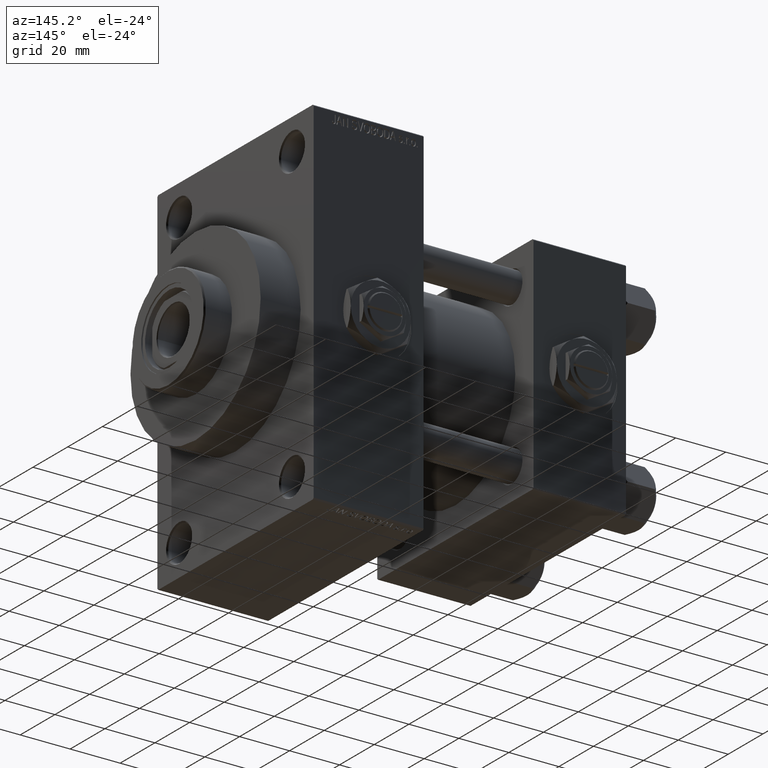
[diagram: clean part render]
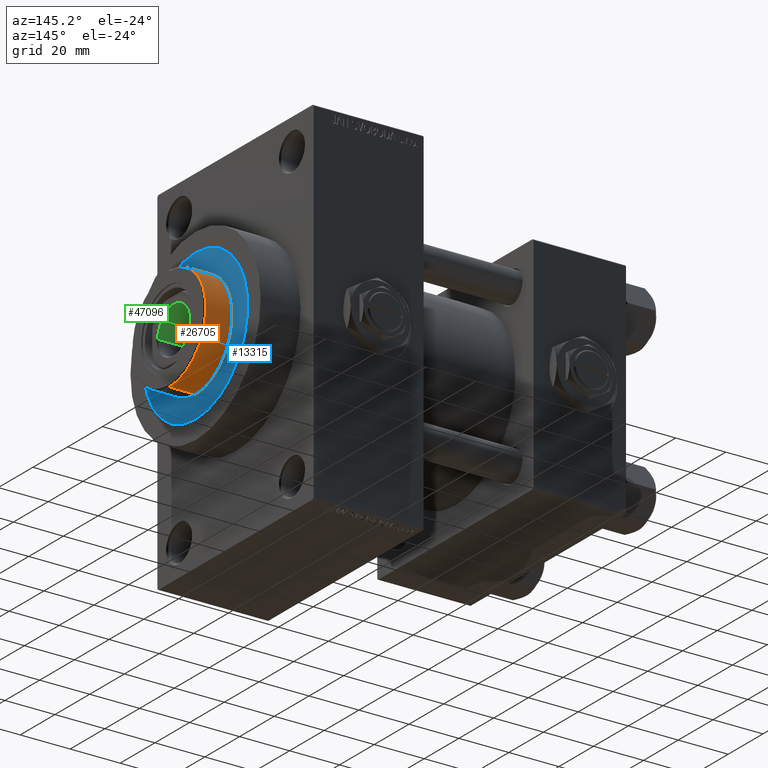
[diagram: same view with three faces highlighted in distinct colors, each labeled with its STEP entity id]
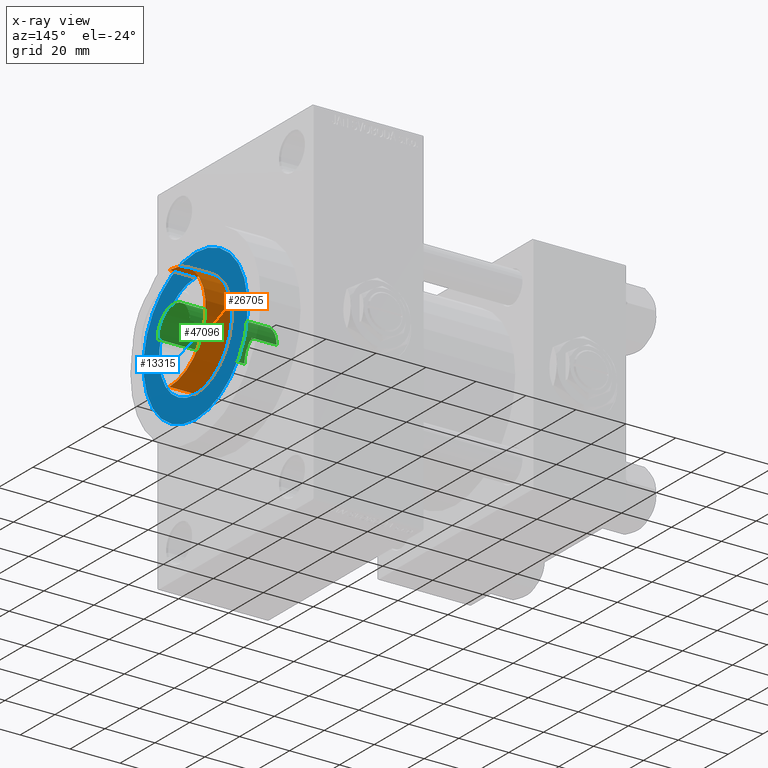
[diagram: x-ray of the same camera — body ghosted, the three highlighted faces saturated]
A machine part, auxiliary view with three faces highlighted in distinct colors.
The next image is the same camera in x-ray (body ghosted, the three faces saturated) — at least one of them is partly hidden behind the body in this view.
Their STEP definitions:

[orange] entity #26705 — the highlighted cylindrical surface (partial cylindrical patch) has radius 21 mm, axis along (-1, 0, 0).
#613 = CARTESIAN_POINT ( 'NONE',  ( 0.000000000000000000, 0.000000000000000000, 53.76000000000001933 ) ) ;
#2770 = VERTEX_POINT ( 'NONE', #13789 ) ;
#2890 = VERTEX_POINT ( 'NONE', #3085 ) ;
#3081 = LINE ( 'NONE', #44948, #25837 ) ;
#3085 = CARTESIAN_POINT ( 'NONE',  ( -21.00000000000000000, 0.000000000000000000, 53.76000000000001933 ) ) ;
#3525 = CIRCLE ( 'NONE', #37760, 21.00000000000000000 ) ;
#5161 = CARTESIAN_POINT ( 'NONE',  ( 21.00000000000000000, 2.571758278209441661E-15, 43.25999999999999801 ) ) ;
#5489 = DIRECTION ( 'NONE',  ( -0.000000000000000000, -0.000000000000000000, -1.000000000000000000 ) ) ;
#6831 = CYLINDRICAL_SURFACE ( 'NONE', #16289, 21.00000000000000000 ) ;
#7584 = DIRECTION ( 'NONE',  ( 0.000000000000000000, 0.000000000000000000, -1.000000000000000000 ) ) ;
#9514 = CARTESIAN_POINT ( 'NONE',  ( -21.00000000000000000, 0.000000000000000000, 43.25999999999999801 ) ) ;
#10528 = ORIENTED_EDGE ( 'NONE', *, *, #16789, .T. ) ;
#10774 = DIRECTION ( 'NONE',  ( -0.000000000000000000, -0.000000000000000000, -1.000000000000000000 ) ) ;
#13789 = CARTESIAN_POINT ( 'NONE',  ( 21.00000000000000000, 2.571758278209441661E-15, 53.76000000000001933 ) ) ;
#14926 = DIRECTION ( 'NONE',  ( 1.000000000000000000, 0.000000000000000000, 0.000000000000000000 ) ) ;
#15795 = DIRECTION ( 'NONE',  ( 1.000000000000000000, 0.000000000000000000, 0.000000000000000000 ) ) ;
#16208 = EDGE_LOOP ( 'NONE', ( #46534, #10528, #35695, #25973 ) ) ;
#16289 = AXIS2_PLACEMENT_3D ( 'NONE', #17314, #28777, #40006 ) ;
#16789 = EDGE_CURVE ( 'NONE', #2770, #2890, #48785, .T. ) ;
#17314 = CARTESIAN_POINT ( 'NONE',  ( 0.000000000000000000, 0.000000000000000000, 54.26000000000000512 ) ) ;
#17831 = VECTOR ( 'NONE', #5489, 1000.000000000000000 ) ;
#25837 = VECTOR ( 'NONE', #10774, 1000.000000000000000 ) ;
#25973 = ORIENTED_EDGE ( 'NONE', *, *, #36684, .T. ) ;
#26705 = ADVANCED_FACE ( 'NONE', ( #47986 ), #6831, .T. ) ;
#28128 = VERTEX_POINT ( 'NONE', #5161 ) ;
#28777 = DIRECTION ( 'NONE',  ( -0.000000000000000000, -0.000000000000000000, -1.000000000000000000 ) ) ;
#35695 = ORIENTED_EDGE ( 'NONE', *, *, #37956, .T. ) ;
#36393 = EDGE_CURVE ( 'NONE', #2770, #28128, #43387, .T. ) ;
#36684 = EDGE_CURVE ( 'NONE', #40590, #28128, #3525, .T. ) ;
#37760 = AXIS2_PLACEMENT_3D ( 'NONE', #46090, #49078, #14926 ) ;
#37956 = EDGE_CURVE ( 'NONE', #2890, #40590, #3081, .T. ) ;
#40006 = DIRECTION ( 'NONE',  ( -1.000000000000000000, 0.000000000000000000, 0.000000000000000000 ) ) ;
#40035 = AXIS2_PLACEMENT_3D ( 'NONE', #613, #7584, #15795 ) ;
#40590 = VERTEX_POINT ( 'NONE', #9514 ) ;
#43137 = CARTESIAN_POINT ( 'NONE',  ( 21.00000000000000000, 2.571758278209441661E-15, 54.26000000000000512 ) ) ;
#43387 = LINE ( 'NONE', #43137, #17831 ) ;
#44948 = CARTESIAN_POINT ( 'NONE',  ( -21.00000000000000000, 0.000000000000000000, 54.26000000000000512 ) ) ;
#46090 = CARTESIAN_POINT ( 'NONE',  ( 0.000000000000000000, 0.000000000000000000, 43.25999999999999801 ) ) ;
#46534 = ORIENTED_EDGE ( 'NONE', *, *, #36393, .F. ) ;
#47986 = FACE_OUTER_BOUND ( 'NONE', #16208, .T. ) ;
#48785 = CIRCLE ( 'NONE', #40035, 21.00000000000000000 ) ;
#49078 = DIRECTION ( 'NONE',  ( 0.000000000000000000, 0.000000000000000000, 1.000000000000000000 ) ) ;

[blue] entity #13315 — the highlighted planar face has unit normal (1, -0, -0).
#1607 = CIRCLE ( 'NONE', #14296, 30.00000000000000000 ) ;
#2338 = DIRECTION ( 'NONE',  ( 1.000000000000000000, 0.000000000000000000, -0.000000000000000000 ) ) ;
#3525 = CIRCLE ( 'NONE', #37760, 21.00000000000000000 ) ;
#4691 = DIRECTION ( 'NONE',  ( 0.000000000000000000, 0.000000000000000000, 1.000000000000000000 ) ) ;
#5161 = CARTESIAN_POINT ( 'NONE',  ( 21.00000000000000000, 2.571758278209441661E-15, 43.25999999999999801 ) ) ;
#6230 = DIRECTION ( 'NONE',  ( 0.000000000000000000, 0.000000000000000000, 1.000000000000000000 ) ) ;
#7272 = DIRECTION ( 'NONE',  ( 0.000000000000000000, 0.000000000000000000, 1.000000000000000000 ) ) ;
#7754 = VERTEX_POINT ( 'NONE', #18314 ) ;
#8073 = AXIS2_PLACEMENT_3D ( 'NONE', #20759, #9295, #2338 ) ;
#9295 = DIRECTION ( 'NONE',  ( 0.000000000000000000, 0.000000000000000000, 1.000000000000000000 ) ) ;
#9514 = CARTESIAN_POINT ( 'NONE',  ( -21.00000000000000000, 0.000000000000000000, 43.25999999999999801 ) ) ;
#9969 = CARTESIAN_POINT ( 'NONE',  ( 0.000000000000000000, 0.000000000000000000, 43.25999999999999801 ) ) ;
#12952 = EDGE_CURVE ( 'NONE', #7754, #39501, #1607, .T. ) ;
#13052 = CIRCLE ( 'NONE', #46513, 30.00000000000000000 ) ;
#13315 = ADVANCED_FACE ( 'NONE', ( #40472, #43461 ), #36478, .T. ) ;
#14296 = AXIS2_PLACEMENT_3D ( 'NONE', #46324, #4691, #16140 ) ;
#14926 = DIRECTION ( 'NONE',  ( 1.000000000000000000, 0.000000000000000000, 0.000000000000000000 ) ) ;
#15233 = DIRECTION ( 'NONE',  ( 1.000000000000000000, 0.000000000000000000, 0.000000000000000000 ) ) ;
#15356 = AXIS2_PLACEMENT_3D ( 'NONE', #41685, #7272, #15233 ) ;
#15377 = CARTESIAN_POINT ( 'NONE',  ( 30.00000000000000000, 3.673940397442059178E-15, 43.25999999999999801 ) ) ;
#16140 = DIRECTION ( 'NONE',  ( 1.000000000000000000, 0.000000000000000000, 0.000000000000000000 ) ) ;
#16583 = ORIENTED_EDGE ( 'NONE', *, *, #36684, .F. ) ;
#17076 = EDGE_CURVE ( 'NONE', #28128, #40590, #24938, .T. ) ;
#18146 = ORIENTED_EDGE ( 'NONE', *, *, #17076, .F. ) ;
#18314 = CARTESIAN_POINT ( 'NONE',  ( -30.00000000000000000, 0.000000000000000000, 43.25999999999999801 ) ) ;
#20759 = CARTESIAN_POINT ( 'NONE',  ( 0.000000000000000000, 0.000000000000000000, 43.25999999999999801 ) ) ;
#22400 = EDGE_LOOP ( 'NONE', ( #16583, #18146 ) ) ;
#24001 = ORIENTED_EDGE ( 'NONE', *, *, #36638, .T. ) ;
#24938 = CIRCLE ( 'NONE', #15356, 21.00000000000000000 ) ;
#28128 = VERTEX_POINT ( 'NONE', #5161 ) ;
#29180 = ORIENTED_EDGE ( 'NONE', *, *, #12952, .T. ) ;
#30132 = EDGE_LOOP ( 'NONE', ( #29180, #24001 ) ) ;
#36478 = PLANE ( 'NONE',  #8073 ) ;
#36638 = EDGE_CURVE ( 'NONE', #39501, #7754, #13052, .T. ) ;
#36651 = DIRECTION ( 'NONE',  ( 1.000000000000000000, 0.000000000000000000, 0.000000000000000000 ) ) ;
#36684 = EDGE_CURVE ( 'NONE', #40590, #28128, #3525, .T. ) ;
#37760 = AXIS2_PLACEMENT_3D ( 'NONE', #46090, #49078, #14926 ) ;
#39501 = VERTEX_POINT ( 'NONE', #15377 ) ;
#40472 = FACE_BOUND ( 'NONE', #22400, .T. ) ;
#40590 = VERTEX_POINT ( 'NONE', #9514 ) ;
#41685 = CARTESIAN_POINT ( 'NONE',  ( 0.000000000000000000, 0.000000000000000000, 43.25999999999999801 ) ) ;
#43461 = FACE_OUTER_BOUND ( 'NONE', #30132, .T. ) ;
#46090 = CARTESIAN_POINT ( 'NONE',  ( 0.000000000000000000, 0.000000000000000000, 43.25999999999999801 ) ) ;
#46324 = CARTESIAN_POINT ( 'NONE',  ( 0.000000000000000000, 0.000000000000000000, 43.25999999999999801 ) ) ;
#46513 = AXIS2_PLACEMENT_3D ( 'NONE', #9969, #6230, #36651 ) ;
#49078 = DIRECTION ( 'NONE',  ( 0.000000000000000000, 0.000000000000000000, 1.000000000000000000 ) ) ;

[green] entity #47096 — the highlighted cylindrical surface (edge-blend (fillet) strip) has radius 9.25 mm, axis along (1, 0, 0).
#161 = DIRECTION ( 'NONE',  ( -0.000000000000000000, -0.000000000000000000, 1.000000000000000000 ) ) ;
#252 = CIRCLE ( 'NONE', #13800, 9.249999999999994671 ) ;
#4028 = CARTESIAN_POINT ( 'NONE',  ( 0.000000000000000000, 0.000000000000000000, 77.99999999999998579 ) ) ;
#5257 = DIRECTION ( 'NONE',  ( 0.000000000000000000, 0.000000000000000000, 1.000000000000000000 ) ) ;
#5492 = VERTEX_POINT ( 'NONE', #37625 ) ;
#5681 = AXIS2_PLACEMENT_3D ( 'NONE', #4028, #14739, #34440 ) ;
#12744 = ORIENTED_EDGE ( 'NONE', *, *, #24096, .T. ) ;
#12969 = CARTESIAN_POINT ( 'NONE',  ( 0.000000000000000000, 0.000000000000000000, 112.6999999999999744 ) ) ;
#13394 = EDGE_CURVE ( 'NONE', #5492, #48129, #22352, .T. ) ;
#13800 = AXIS2_PLACEMENT_3D ( 'NONE', #12969, #5257, #35685 ) ;
#14739 = DIRECTION ( 'NONE',  ( -0.000000000000000000, -0.000000000000000000, 1.000000000000000000 ) ) ;
#15102 = CARTESIAN_POINT ( 'NONE',  ( -9.249999999999994671, 1.132798289211300909E-15, 112.9999999999999858 ) ) ;
#15601 = FACE_OUTER_BOUND ( 'NONE', #39330, .T. ) ;
#15852 = CYLINDRICAL_SURFACE ( 'NONE', #20442, 9.249999999999994671 ) ;
#17179 = EDGE_CURVE ( 'NONE', #22114, #38430, #252, .T. ) ;
#17937 = VECTOR ( 'NONE', #42283, 1000.000000000000000 ) ;
#20442 = AXIS2_PLACEMENT_3D ( 'NONE', #35062, #37806, #31078 ) ;
#22114 = VERTEX_POINT ( 'NONE', #40775 ) ;
#22280 = CARTESIAN_POINT ( 'NONE',  ( 9.249999999999992895, 0.000000000000000000, 77.99999999999998579 ) ) ;
#22352 = CIRCLE ( 'NONE', #5681, 9.249999999999992895 ) ;
#24096 = EDGE_CURVE ( 'NONE', #5492, #22114, #30074, .T. ) ;
#26215 = ORIENTED_EDGE ( 'NONE', *, *, #46302, .F. ) ;
#28582 = ORIENTED_EDGE ( 'NONE', *, *, #17179, .T. ) ;
#30074 = LINE ( 'NONE', #15102, #17937 ) ;
#31078 = DIRECTION ( 'NONE',  ( 1.000000000000000000, 0.000000000000000000, 0.000000000000000000 ) ) ;
#34440 = DIRECTION ( 'NONE',  ( 1.000000000000000000, 0.000000000000000000, 0.000000000000000000 ) ) ;
#35062 = CARTESIAN_POINT ( 'NONE',  ( 0.000000000000000000, 0.000000000000000000, 112.9999999999999858 ) ) ;
#35590 = VECTOR ( 'NONE', #161, 1000.000000000000000 ) ;
#35685 = DIRECTION ( 'NONE',  ( 1.000000000000000000, 0.000000000000000000, 0.000000000000000000 ) ) ;
#37625 = CARTESIAN_POINT ( 'NONE',  ( -9.249999999999992895, 1.132798289211300712E-15, 77.99999999999998579 ) ) ;
#37806 = DIRECTION ( 'NONE',  ( -0.000000000000000000, -0.000000000000000000, 1.000000000000000000 ) ) ;
#38430 = VERTEX_POINT ( 'NONE', #46591 ) ;
#39330 = EDGE_LOOP ( 'NONE', ( #39493, #12744, #28582, #26215 ) ) ;
#39493 = ORIENTED_EDGE ( 'NONE', *, *, #13394, .F. ) ;
#40775 = CARTESIAN_POINT ( 'NONE',  ( -9.249999999999994671, 1.132798289211300909E-15, 112.6999999999999744 ) ) ;
#42283 = DIRECTION ( 'NONE',  ( -0.000000000000000000, -0.000000000000000000, 1.000000000000000000 ) ) ;
#42290 = LINE ( 'NONE', #49022, #35590 ) ;
#46302 = EDGE_CURVE ( 'NONE', #48129, #38430, #42290, .T. ) ;
#46591 = CARTESIAN_POINT ( 'NONE',  ( 9.249999999999994671, 0.000000000000000000, 112.6999999999999744 ) ) ;
#47096 = ADVANCED_FACE ( 'NONE', ( #15601 ), #15852, .F. ) ;
#48129 = VERTEX_POINT ( 'NONE', #22280 ) ;
#49022 = CARTESIAN_POINT ( 'NONE',  ( 9.249999999999994671, 0.000000000000000000, 112.9999999999999858 ) ) ;